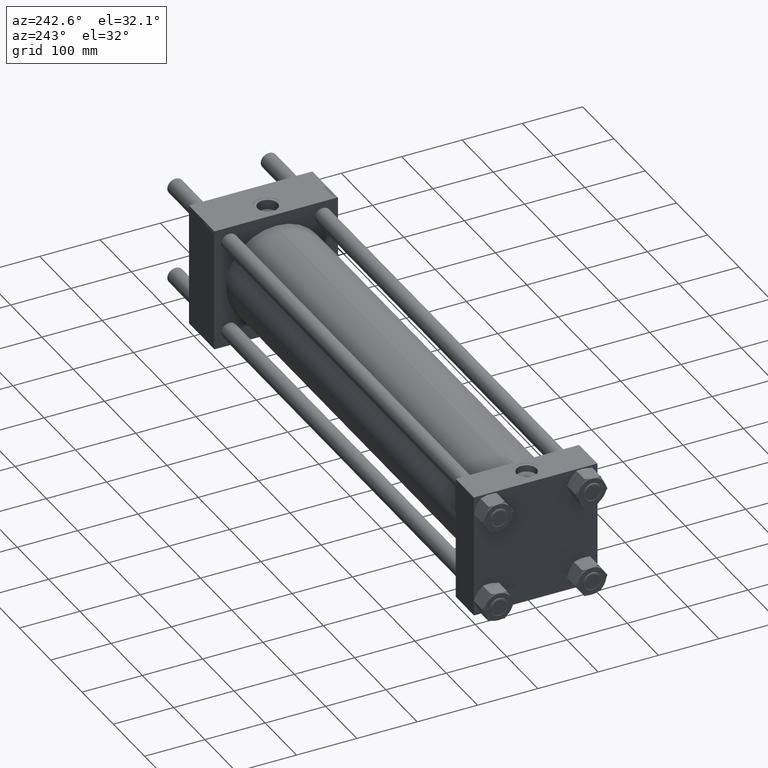
[diagram: clean part render]
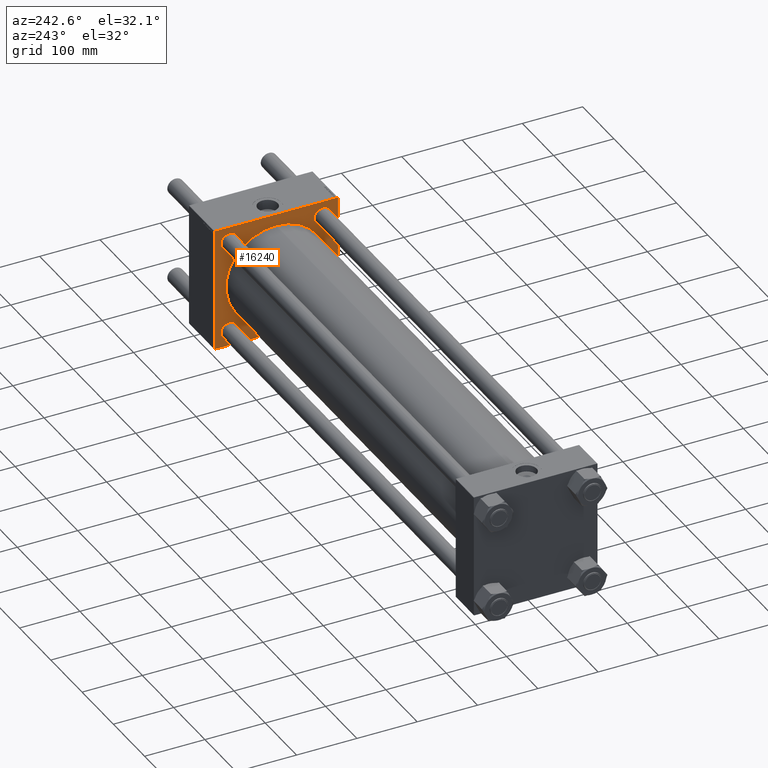
[diagram: same view with one face highlighted and labeled with its STEP entity id]
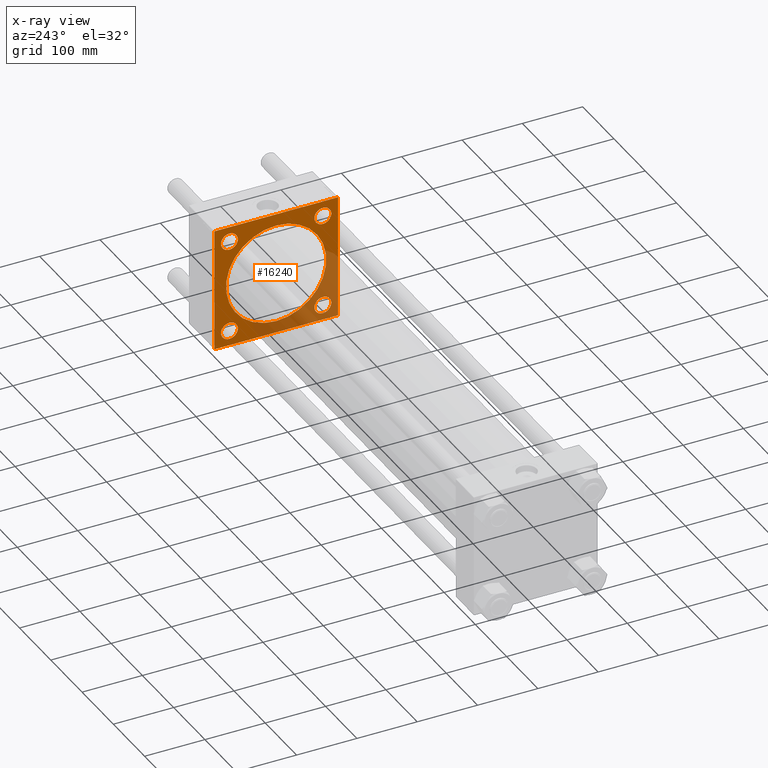
[diagram: x-ray of the same camera — body ghosted, the highlighted face saturated]
A machine part, auxiliary view. The second image highlights one B-rep face of the part: STEP entity #16240.
The next image is the same camera in x-ray: the body ghosted, the highlighted face saturated — about 30% of this face is hidden behind the body in this view.
In plain terms, the highlighted planar face has unit normal (-1, 0, 0).
Its self-contained STEP definition (entity closure, byte-faithful):
#460 = AXIS2_PLACEMENT_3D ( 'NONE', #42091, #21212, #3565 ) ;
#753 = VERTEX_POINT ( 'NONE', #1142 ) ;
#878 = DIRECTION ( 'NONE',  ( 0.000000000000000000, 0.000000000000000000, -1.000000000000000000 ) ) ;
#1072 = EDGE_CURVE ( 'NONE', #42561, #51504, #30832, .T. ) ;
#1142 = CARTESIAN_POINT ( 'NONE',  ( 830.0000000000001137, -77.44999999999996021, -63.44999999999991047 ) ) ;
#1456 = LINE ( 'NONE', #19109, #29778 ) ;
#2671 = CARTESIAN_POINT ( 'NONE',  ( 830.0000000000001137, 77.44999999999998863, 77.45000000000001705 ) ) ;
#2790 = ORIENTED_EDGE ( 'NONE', *, *, #56032, .T. ) ;
#3106 = DIRECTION ( 'NONE',  ( 1.000000000000000000, -0.000000000000000000, -0.000000000000000000 ) ) ;
#3251 = VERTEX_POINT ( 'NONE', #16337 ) ;
#3501 = FACE_OUTER_BOUND ( 'NONE', #42507, .T. ) ;
#3565 = DIRECTION ( 'NONE',  ( 0.000000000000000000, 0.000000000000000000, 1.000000000000000000 ) ) ;
#3567 = CIRCLE ( 'NONE', #22936, 13.99999999999990052 ) ;
#4439 = ORIENTED_EDGE ( 'NONE', *, *, #19957, .T. ) ;
#5453 = EDGE_CURVE ( 'NONE', #3251, #753, #41760, .T. ) ;
#6199 = DIRECTION ( 'NONE',  ( 0.000000000000000000, 0.000000000000000000, -1.000000000000000000 ) ) ;
#6273 = DIRECTION ( 'NONE',  ( 0.000000000000000000, 0.000000000000000000, 1.000000000000000000 ) ) ;
#6771 = AXIS2_PLACEMENT_3D ( 'NONE', #41912, #3106, #28606 ) ;
#6850 = VECTOR ( 'NONE', #25297, 1000.000000000000000 ) ;
#6854 = CARTESIAN_POINT ( 'NONE',  ( 830.0000000000001137, 102.2499999999999716, 102.2499999999999716 ) ) ;
#7036 = CARTESIAN_POINT ( 'NONE',  ( 830.0000000000001137, -102.0000000000000142, 102.4999999999999858 ) ) ;
#7255 = FACE_BOUND ( 'NONE', #29605, .T. ) ;
#7815 = FACE_BOUND ( 'NONE', #27485, .T. ) ;
#7846 = EDGE_CURVE ( 'NONE', #53250, #25189, #1456, .T. ) ;
#8164 = VECTOR ( 'NONE', #10788, 1000.000000000000114 ) ;
#8219 = DIRECTION ( 'NONE',  ( 0.000000000000000000, -1.353930517835556727E-16, -1.000000000000000000 ) ) ;
#9080 = EDGE_CURVE ( 'NONE', #24765, #30455, #36170, .T. ) ;
#10093 = CARTESIAN_POINT ( 'NONE',  ( 830.0000000000001137, -102.4999999999999716, 102.0000000000000284 ) ) ;
#10788 = DIRECTION ( 'NONE',  ( -0.000000000000000000, -0.7071067811865474617, -0.7071067811865474617 ) ) ;
#10991 = DIRECTION ( 'NONE',  ( 1.000000000000000000, 0.000000000000000000, 0.000000000000000000 ) ) ;
#11061 = DIRECTION ( 'NONE',  ( 0.000000000000000000, -1.000000000000000000, -1.353930517835556727E-16 ) ) ;
#11281 = AXIS2_PLACEMENT_3D ( 'NONE', #39246, #17233, #47626 ) ;
#11598 = FACE_BOUND ( 'NONE', #16437, .T. ) ;
#11670 = ORIENTED_EDGE ( 'NONE', *, *, #16790, .T. ) ;
#11860 = VERTEX_POINT ( 'NONE', #25674 ) ;
#11890 = CARTESIAN_POINT ( 'NONE',  ( 830.0000000000001137, 102.5000000000000142, -101.9999999999999574 ) ) ;
#13967 = AXIS2_PLACEMENT_3D ( 'NONE', #2671, #21171, #52143 ) ;
#14405 = EDGE_CURVE ( 'NONE', #11860, #16819, #40022, .T. ) ;
#14852 = CARTESIAN_POINT ( 'NONE',  ( 830.0000000000001137, 102.2499999999999716, -102.2499999999999716 ) ) ;
#14997 = ORIENTED_EDGE ( 'NONE', *, *, #9080, .T. ) ;
#15067 = EDGE_CURVE ( 'NONE', #42561, #41303, #46799, .T. ) ;
#15360 = ORIENTED_EDGE ( 'NONE', *, *, #5453, .T. ) ;
#15516 = ORIENTED_EDGE ( 'NONE', *, *, #53804, .F. ) ;
#16233 = DIRECTION ( 'NONE',  ( -1.000000000000000000, 0.000000000000000000, 0.000000000000000000 ) ) ;
#16240 = ADVANCED_FACE ( 'NONE', ( #7815, #11598, #7255, #25501, #43147, #3501 ), #29287, .T. ) ;
#16337 = CARTESIAN_POINT ( 'NONE',  ( 830.0000000000001137, -77.44999999999996021, -91.45000000000015916 ) ) ;
#16437 = EDGE_LOOP ( 'NONE', ( #14997, #11670 ) ) ;
#16790 = EDGE_CURVE ( 'NONE', #30455, #24765, #39188, .T. ) ;
#16819 = VERTEX_POINT ( 'NONE', #51982 ) ;
#17074 = DIRECTION ( 'NONE',  ( 1.000000000000000000, -0.000000000000000000, -0.000000000000000000 ) ) ;
#17108 = CARTESIAN_POINT ( 'NONE',  ( 830.0000000000001137, 102.5000000000000142, 101.9999999999999574 ) ) ;
#17233 = DIRECTION ( 'NONE',  ( 1.000000000000000000, -0.000000000000000000, -0.000000000000000000 ) ) ;
#17566 = ORIENTED_EDGE ( 'NONE', *, *, #14405, .T. ) ;
#18033 = LINE ( 'NONE', #35398, #35013 ) ;
#18427 = VERTEX_POINT ( 'NONE', #21368 ) ;
#18525 = EDGE_CURVE ( 'NONE', #52148, #53250, #20450, .T. ) ;
#19109 = CARTESIAN_POINT ( 'NONE',  ( 830.0000000000001137, 102.5000000000000142, 102.5000000000000142 ) ) ;
#19245 = DIRECTION ( 'NONE',  ( 1.000000000000000000, 0.000000000000000000, 0.000000000000000000 ) ) ;
#19790 = LINE ( 'NONE', #14852, #8164 ) ;
#19957 = EDGE_CURVE ( 'NONE', #22283, #18427, #41771, .T. ) ;
#20450 = LINE ( 'NONE', #6854, #20698 ) ;
#20573 = EDGE_LOOP ( 'NONE', ( #2790, #15360 ) ) ;
#20698 = VECTOR ( 'NONE', #55219, 1000.000000000000114 ) ;
#21171 = DIRECTION ( 'NONE',  ( 1.000000000000000000, -0.000000000000000000, -0.000000000000000000 ) ) ;
#21212 = DIRECTION ( 'NONE',  ( 1.000000000000000000, -0.000000000000000000, -0.000000000000000000 ) ) ;
#21368 = CARTESIAN_POINT ( 'NONE',  ( 830.0000000000001137, -102.0000000000000284, -102.5000000000000284 ) ) ;
#21966 = EDGE_LOOP ( 'NONE', ( #40501, #17566 ) ) ;
#22283 = VERTEX_POINT ( 'NONE', #37240 ) ;
#22445 = AXIS2_PLACEMENT_3D ( 'NONE', #40396, #19245, #6199 ) ;
#22936 = AXIS2_PLACEMENT_3D ( 'NONE', #43128, #17074, #46906 ) ;
#23332 = DIRECTION ( 'NONE',  ( 1.000000000000000000, -0.000000000000000000, -0.000000000000000000 ) ) ;
#23712 = CARTESIAN_POINT ( 'NONE',  ( 830.0000000000001137, -102.5000000000000000, -102.0000000000000853 ) ) ;
#24765 = VERTEX_POINT ( 'NONE', #36905 ) ;
#24965 = VECTOR ( 'NONE', #8219, 1000.000000000000000 ) ;
#25189 = VERTEX_POINT ( 'NONE', #11890 ) ;
#25297 = DIRECTION ( 'NONE',  ( 0.000000000000000000, -1.000000000000000000, -1.353930517835556973E-16 ) ) ;
#25501 = FACE_BOUND ( 'NONE', #20573, .T. ) ;
#25674 = CARTESIAN_POINT ( 'NONE',  ( 830.0000000000001137, 7.562483218957820855E-15, -83.00000000000000000 ) ) ;
#25874 = CARTESIAN_POINT ( 'NONE',  ( 830.0000000000001137, 102.5000000000000142, 102.5000000000000142 ) ) ;
#26281 = ORIENTED_EDGE ( 'NONE', *, *, #18525, .T. ) ;
#26435 = CARTESIAN_POINT ( 'NONE',  ( 830.0000000000001137, 101.9999999999999574, 102.5000000000000142 ) ) ;
#27410 = DIRECTION ( 'NONE',  ( 0.000000000000000000, 0.000000000000000000, 1.000000000000000000 ) ) ;
#27423 = CARTESIAN_POINT ( 'NONE',  ( 830.0000000000001137, -77.44999999999996021, 63.45000000000013074 ) ) ;
#27485 = EDGE_LOOP ( 'NONE', ( #51470, #29211 ) ) ;
#28606 = DIRECTION ( 'NONE',  ( 0.000000000000000000, 0.000000000000000000, 1.000000000000000000 ) ) ;
#28628 = VERTEX_POINT ( 'NONE', #52787 ) ;
#28643 = VERTEX_POINT ( 'NONE', #35996 ) ;
#28869 = EDGE_CURVE ( 'NONE', #16819, #11860, #55273, .T. ) ;
#29211 = ORIENTED_EDGE ( 'NONE', *, *, #35654, .T. ) ;
#29287 = PLANE ( 'NONE',  #48435 ) ;
#29441 = DIRECTION ( 'NONE',  ( -0.000000000000000000, 0.7071067811865573427, 0.7071067811865376918 ) ) ;
#29600 = ORIENTED_EDGE ( 'NONE', *, *, #30371, .T. ) ;
#29605 = EDGE_LOOP ( 'NONE', ( #44547, #50824 ) ) ;
#29778 = VECTOR ( 'NONE', #878, 1000.000000000000000 ) ;
#29872 = DIRECTION ( 'NONE',  ( 1.000000000000000000, -0.000000000000000000, -0.000000000000000000 ) ) ;
#30371 = EDGE_CURVE ( 'NONE', #25189, #22283, #19790, .T. ) ;
#30455 = VERTEX_POINT ( 'NONE', #37159 ) ;
#30541 = CIRCLE ( 'NONE', #53638, 13.99999999999990052 ) ;
#30832 = LINE ( 'NONE', #34600, #24965 ) ;
#30876 = EDGE_CURVE ( 'NONE', #28628, #28643, #3567, .T. ) ;
#31174 = CARTESIAN_POINT ( 'NONE',  ( 830.0000000000001137, -77.44999999999996021, 77.45000000000003126 ) ) ;
#31764 = VECTOR ( 'NONE', #29441, 1000.000000000000114 ) ;
#32002 = EDGE_CURVE ( 'NONE', #18427, #51504, #18033, .T. ) ;
#32647 = CARTESIAN_POINT ( 'NONE',  ( 830.0000000000001137, 77.44999999999998863, 77.45000000000001705 ) ) ;
#32827 = VECTOR ( 'NONE', #11061, 1000.000000000000000 ) ;
#33070 = CARTESIAN_POINT ( 'NONE',  ( 830.0000000000001137, -77.44999999999996021, 91.44999999999993179 ) ) ;
#33211 = DIRECTION ( 'NONE',  ( 1.000000000000000000, -0.000000000000000000, -0.000000000000000000 ) ) ;
#34337 = CARTESIAN_POINT ( 'NONE',  ( 830.0000000000001137, -102.2499999999985789, 102.2500000000014211 ) ) ;
#34473 = CARTESIAN_POINT ( 'NONE',  ( 830.0000000000001137, 0.000000000000000000, 0.000000000000000000 ) ) ;
#34600 = CARTESIAN_POINT ( 'NONE',  ( 830.0000000000001137, -102.4999999999999716, 102.4999999999999858 ) ) ;
#35013 = VECTOR ( 'NONE', #35688, 1000.000000000000114 ) ;
#35253 = AXIS2_PLACEMENT_3D ( 'NONE', #37427, #29872, #56489 ) ;
#35398 = CARTESIAN_POINT ( 'NONE',  ( 830.0000000000001137, -102.2499999999986358, -102.2500000000014779 ) ) ;
#35654 = EDGE_CURVE ( 'NONE', #44358, #37601, #30541, .T. ) ;
#35688 = DIRECTION ( 'NONE',  ( 0.000000000000000000, -0.7071067811865573427, 0.7071067811865376918 ) ) ;
#35996 = CARTESIAN_POINT ( 'NONE',  ( 830.0000000000001137, 77.44999999999998863, -63.45000000000011653 ) ) ;
#36170 = CIRCLE ( 'NONE', #13967, 13.99999999999990052 ) ;
#36247 = CIRCLE ( 'NONE', #11281, 13.99999999999990052 ) ;
#36530 = CIRCLE ( 'NONE', #460, 14.00000000000012434 ) ;
#36799 = AXIS2_PLACEMENT_3D ( 'NONE', #38495, #10991, #46325 ) ;
#36905 = CARTESIAN_POINT ( 'NONE',  ( 830.0000000000001137, 77.44999999999998863, 91.44999999999991758 ) ) ;
#37159 = CARTESIAN_POINT ( 'NONE',  ( 830.0000000000001137, 77.44999999999998863, 63.45000000000011653 ) ) ;
#37240 = CARTESIAN_POINT ( 'NONE',  ( 830.0000000000001137, 101.9999999999999574, -102.5000000000000142 ) ) ;
#37427 = CARTESIAN_POINT ( 'NONE',  ( 830.0000000000001137, -77.44999999999996021, -77.45000000000003126 ) ) ;
#37601 = VERTEX_POINT ( 'NONE', #33070 ) ;
#38495 = CARTESIAN_POINT ( 'NONE',  ( 830.0000000000001137, -2.602085213965210642E-15, 0.000000000000000000 ) ) ;
#39188 = CIRCLE ( 'NONE', #55842, 13.99999999999990052 ) ;
#39246 = CARTESIAN_POINT ( 'NONE',  ( 830.0000000000001137, -77.44999999999996021, 77.45000000000003126 ) ) ;
#40022 = CIRCLE ( 'NONE', #22445, 83.00000000000000000 ) ;
#40396 = CARTESIAN_POINT ( 'NONE',  ( 830.0000000000001137, -2.602085213965210642E-15, 0.000000000000000000 ) ) ;
#40501 = ORIENTED_EDGE ( 'NONE', *, *, #28869, .T. ) ;
#41303 = VERTEX_POINT ( 'NONE', #7036 ) ;
#41760 = CIRCLE ( 'NONE', #35253, 14.00000000000012434 ) ;
#41771 = LINE ( 'NONE', #50733, #32827 ) ;
#41912 = CARTESIAN_POINT ( 'NONE',  ( 830.0000000000001137, 77.44999999999998863, -77.45000000000001705 ) ) ;
#42051 = EDGE_CURVE ( 'NONE', #37601, #44358, #36247, .T. ) ;
#42091 = CARTESIAN_POINT ( 'NONE',  ( 830.0000000000001137, -77.44999999999996021, -77.45000000000003126 ) ) ;
#42507 = EDGE_LOOP ( 'NONE', ( #4439, #42844, #53173, #42716, #15516, #26281, #43720, #29600 ) ) ;
#42561 = VERTEX_POINT ( 'NONE', #10093 ) ;
#42716 = ORIENTED_EDGE ( 'NONE', *, *, #15067, .T. ) ;
#42844 = ORIENTED_EDGE ( 'NONE', *, *, #32002, .T. ) ;
#43128 = CARTESIAN_POINT ( 'NONE',  ( 830.0000000000001137, 77.44999999999998863, -77.45000000000001705 ) ) ;
#43147 = FACE_BOUND ( 'NONE', #21966, .T. ) ;
#43720 = ORIENTED_EDGE ( 'NONE', *, *, #7846, .T. ) ;
#44358 = VERTEX_POINT ( 'NONE', #27423 ) ;
#44547 = ORIENTED_EDGE ( 'NONE', *, *, #50883, .T. ) ;
#46325 = DIRECTION ( 'NONE',  ( 0.000000000000000000, 0.000000000000000000, -1.000000000000000000 ) ) ;
#46799 = LINE ( 'NONE', #34337, #31764 ) ;
#46906 = DIRECTION ( 'NONE',  ( 0.000000000000000000, 0.000000000000000000, 1.000000000000000000 ) ) ;
#47289 = LINE ( 'NONE', #25874, #6850 ) ;
#47433 = CIRCLE ( 'NONE', #6771, 13.99999999999990052 ) ;
#47626 = DIRECTION ( 'NONE',  ( 0.000000000000000000, 0.000000000000000000, 1.000000000000000000 ) ) ;
#48435 = AXIS2_PLACEMENT_3D ( 'NONE', #34473, #16233, #52122 ) ;
#50733 = CARTESIAN_POINT ( 'NONE',  ( 830.0000000000001137, 102.5000000000000142, -102.5000000000000142 ) ) ;
#50824 = ORIENTED_EDGE ( 'NONE', *, *, #30876, .T. ) ;
#50883 = EDGE_CURVE ( 'NONE', #28643, #28628, #47433, .T. ) ;
#51470 = ORIENTED_EDGE ( 'NONE', *, *, #42051, .T. ) ;
#51504 = VERTEX_POINT ( 'NONE', #23712 ) ;
#51982 = CARTESIAN_POINT ( 'NONE',  ( 830.0000000000001137, -2.602085213965210642E-15, 83.00000000000000000 ) ) ;
#52122 = DIRECTION ( 'NONE',  ( 0.000000000000000000, 0.000000000000000000, 1.000000000000000000 ) ) ;
#52143 = DIRECTION ( 'NONE',  ( 0.000000000000000000, 0.000000000000000000, 1.000000000000000000 ) ) ;
#52148 = VERTEX_POINT ( 'NONE', #26435 ) ;
#52787 = CARTESIAN_POINT ( 'NONE',  ( 830.0000000000001137, 77.44999999999998863, -91.44999999999991758 ) ) ;
#53173 = ORIENTED_EDGE ( 'NONE', *, *, #1072, .F. ) ;
#53250 = VERTEX_POINT ( 'NONE', #17108 ) ;
#53638 = AXIS2_PLACEMENT_3D ( 'NONE', #31174, #23332, #27410 ) ;
#53804 = EDGE_CURVE ( 'NONE', #52148, #41303, #47289, .T. ) ;
#55219 = DIRECTION ( 'NONE',  ( 0.000000000000000000, 0.7071067811865474617, -0.7071067811865474617 ) ) ;
#55273 = CIRCLE ( 'NONE', #36799, 83.00000000000000000 ) ;
#55842 = AXIS2_PLACEMENT_3D ( 'NONE', #32647, #33211, #6273 ) ;
#56032 = EDGE_CURVE ( 'NONE', #753, #3251, #36530, .T. ) ;
#56489 = DIRECTION ( 'NONE',  ( 0.000000000000000000, 0.000000000000000000, 1.000000000000000000 ) ) ;